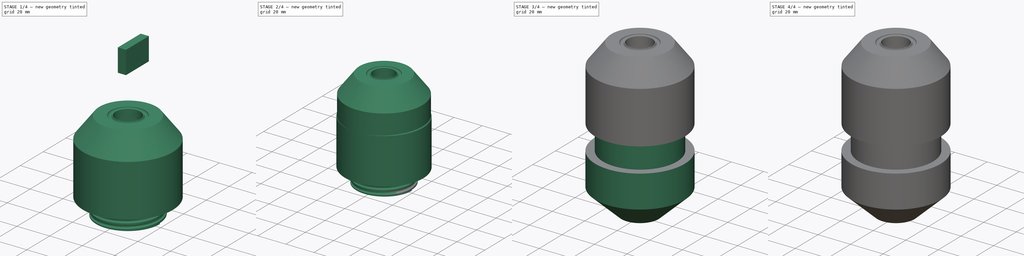
[diagram: build sequence overview — one tinted view per stage of 4, left to right]
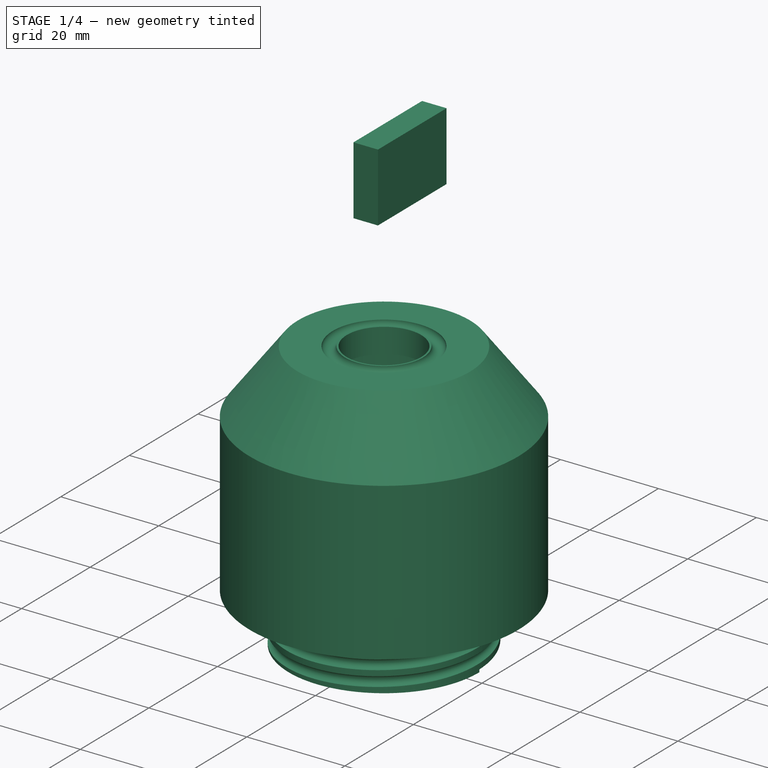
[diagram: stage 1 of 4 — iso view after this stage's code; geometry added in this stage tinted green]
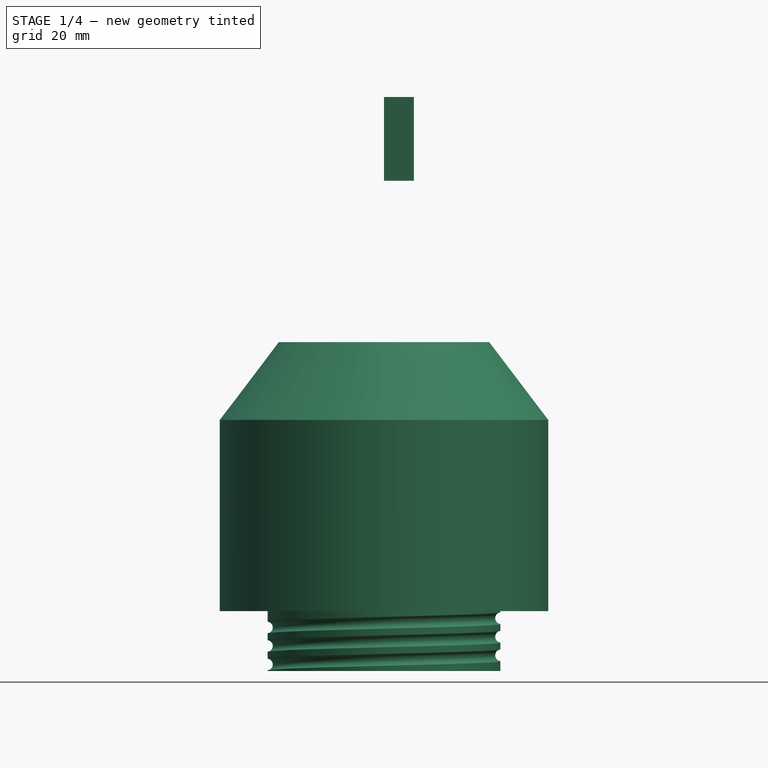
[diagram: stage 1 of 4 — front view after this stage's code; geometry added in this stage tinted green]
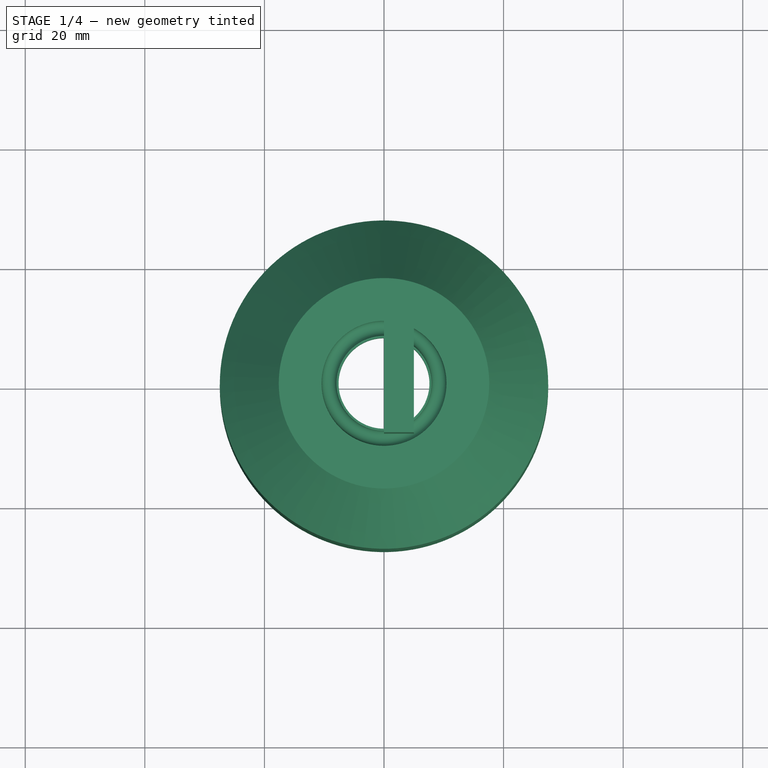
[diagram: stage 1 of 4 — top view after this stage's code; geometry added in this stage tinted green]
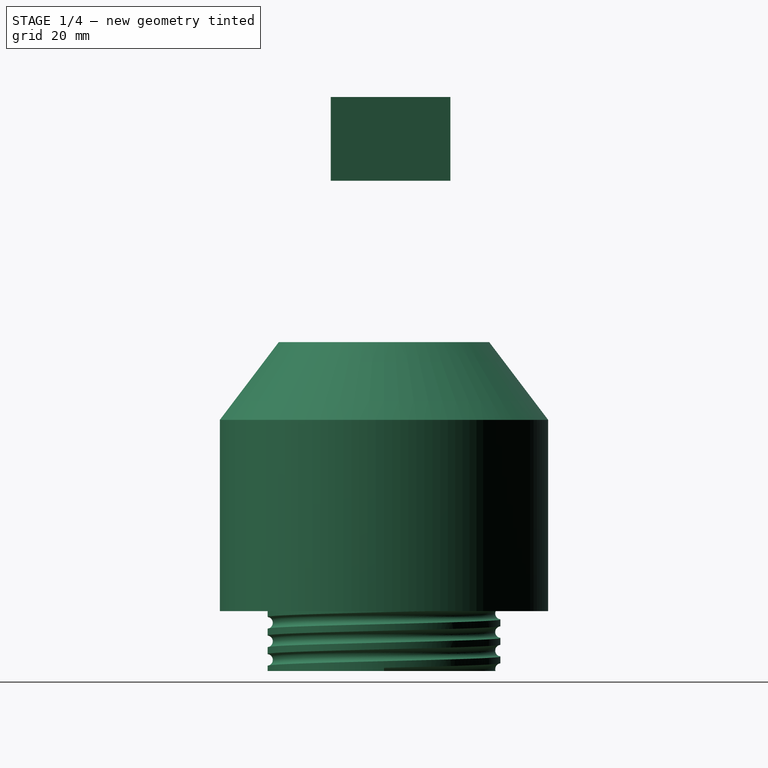
[diagram: stage 1 of 4 — right view after this stage's code; geometry added in this stage tinted green]
FCSTD DOCUMENT  (FreeCAD 0.21R33771 (Git))
Label: Geophone V16
License: All rights reserved
LicenseURL: http://en.wikipedia.org/wiki/All_rights_reserved
objects: Sketcher::SketchObject×8, PartDesign::Body×4, PartDesign::Revolution×3, PartDesign::Hole×2, PartDesign::Chamfer×2, PartDesign::SubtractiveHelix×2, Part::Cut×2, Part::FeaturePython×1, PartDesign::ShapeBinder×1, PartDesign::Pad×1
note: 36 computed .brp shape members not serialized (recipe doc carries the construction recipe); baked Part::Feature solids carry a one-line shape summary decoded from their .brp

FEATURE [Sketcher::SketchObject] Sketch001
  FullyConstrained = false
  MapMode = 5
  Placement = pos=(0,0,0) rot=(1,0,0;1.5708rad)
  Support = -> [XZ_Plane001]
  sketch-geometry (11):
    g0: LineSegment StartX=17.6 StartY=13.9999 StartZ=0 EndX=27.46 EndY=1 EndZ=0
    g1: LineSegment StartX=27.46 StartY=1 StartZ=0 EndX=27.46 EndY=-31 EndZ=0
    g2: LineSegment StartX=27.46 StartY=-31 StartZ=0 EndX=19.46 EndY=-31 EndZ=0
    g3: LineSegment StartX=19.46 StartY=-31 StartZ=0 EndX=19.46 EndY=-41 EndZ=0
    g4: LineSegment StartX=19.46 StartY=-41 StartZ=0 EndX=13.42 EndY=-41 EndZ=0
    g5: LineSegment StartX=13.42 StartY=-41 StartZ=0 EndX=13.42 EndY=9 EndZ=0
    g6: LineSegment StartX=13.42 StartY=9 StartZ=0 EndX=7.6 EndY=9 EndZ=0
    g7: LineSegment StartX=7.6 StartY=9 StartZ=0 EndX=7.6 EndY=14 EndZ=0
    g8: LineSegment StartX=7.6 StartY=14 StartZ=0 EndX=7.95 EndY=14 EndZ=0
    g9: LineSegment StartX=17.6 StartY=13.9999 StartZ=0 EndX=10.45 EndY=13.9999 EndZ=0
    g10: ArcOfCircle CenterX=9.2 CenterY=14.0004 CenterZ=0 NormalX=0 NormalY=0 NormalZ=1 AngleXU=0 Radius=1.25 StartAngle=3.14194 EndAngle=6.28279
  constraints (33):
    c: Coincident(g1,g0)
    c: Vertical(g1)
    c: Coincident(g2,g1)
    c: Horizontal(g2)
    c: Coincident(g3,g2)
    c: Vertical(g3)
    c: Coincident(g4,g3)
    c: Horizontal(g4)
    c: Coincident(g5,g4)
    c: Vertical(g5)
    c: Coincident(g6,g5)
    c: Horizontal(g6)
    c: Coincident(g7,g6)
    c: Vertical(g7)
    c: DistanceX(g-1,g6) = 7.6
    c: Distance(g0,g0) = 16.3162
    c: DistanceY(g6,g7) = 5
    c: DistanceX(g6,g5) = 5.82
    c: Distance(g6,g-1) = 9
    c: DistanceY(g4,g5) = 50
    c: DistanceY(g1,g0) = 32
    c: DistanceX(g4,g3) = 6.04
    c: DistanceX(g2,g1) = 8
    c: DistanceY(g3,g2) = 10
    c: Coincident(g8,g7)
    c: Horizontal(g8)
    c: Coincident(g9,g0)
    c: Horizontal(g9)
    c: Coincident(g10,g8)
    c: Coincident(g10,g9)
    c: DistanceX(g7,g8) = 0.35
    c: Radius(g10) = 1.25
    c: DistanceX(g9,g0) = 7.15
FEATURE [PartDesign::Revolution] Revolution001
  Angle = 360
  Axis = (0,-2e-16,1)
  Base = (0,0,0)
  Placement = pos=(0,0,0) rot=(1,0,0;1.5708rad)
  Profile = -> Sketch001
  ReferenceAxis = -> Sketch001 [V_Axis]
  Reversed = true
FEATURE [PartDesign::Body] Body  label="BASE001"
  Group = -> [Sketch,Revolution,Chamfer003]
  Origin = -> Origin
  Tip = -> Chamfer003
FEATURE [Sketcher::SketchObject] Sketch008
  FullyConstrained = false
  MapMode = 5
  Placement = pos=(0,0,0) rot=(1,0,0;1.5708rad)
  Support = -> [XZ_Plane001]
  sketch-geometry (1):
    g0: Circle CenterX=19.6 CenterY=-41.47 CenterZ=0 NormalX=0 NormalY=0 NormalZ=1 AngleXU=0 Radius=1
  constraints (2):
    c: Diameter(g0) = 2
    c: DistanceX(g0) = 19.6
FEATURE [PartDesign::SubtractiveHelix] SubtractiveHelix
  Angle = 0
  Axis = (0,-2e-16,1)
  Base = (0,0,0)
  BaseFeature = -> Revolution001
  Growth = 0
  HasBeenEdited = true
  Height = 10.33
  LeftHanded = false
  Mode = 0
  Outside = false
  Pitch = 3.1
  Placement = pos=(0,0,0) rot=(1,0,0;1.5708rad)
  Profile = -> Sketch008
  ReferenceAxis = -> Sketch008 [V_Axis]
  Turns = 3.33226
FEATURE [PartDesign::Body] Body001  label="UP"
  Group = -> [Sketch001,Revolution001,Sketch008,SubtractiveHelix,ShapeBinder,Sketch009,Hole]
  Origin = -> Origin001
  Placement = pos=(0,0,66.1) rot=(0,0,1;0rad)
  Tip = -> Hole
FEATURE [Sketcher::SketchObject] Sketch010
  FullyConstrained = false
  MapMode = 5
  Placement = pos=(0,0,0) rot=(0.57735,0.57735,0.57735;2.0944rad)
  Support = -> [YZ_Plane005]
  sketch-geometry (4):
    g0: LineSegment StartX=-8.90263 StartY=54.9851 StartZ=0 EndX=11.0974 EndY=54.9851 EndZ=0
    g1: LineSegment StartX=11.0974 StartY=54.9851 StartZ=0 EndX=11.0974 EndY=40.9851 EndZ=0
    g2: LineSegment StartX=11.0974 StartY=40.9851 StartZ=0 EndX=-8.90263 EndY=40.9851 EndZ=0
    g3: LineSegment StartX=-8.90263 StartY=40.9851 StartZ=0 EndX=-8.90263 EndY=54.9851 EndZ=0
  constraints (10):
    c: Coincident(g0,g1)
    c: Coincident(g1,g2)
    c: Coincident(g2,g3)
    c: Coincident(g3,g0)
    c: Horizontal(g0)
    c: Horizontal(g2)
    c: Vertical(g1)
    c: Vertical(g3)
    c: DistanceX(g0,g0) = 20
    c: DistanceY(g2,g0) = 14
FEATURE [PartDesign::Pad] Pad
  Direction = (1,-2e-16,3e-16)
  Length = 5
  Length2 = 10
  Placement = pos=(0,0,0) rot=(0.57735,0.57735,0.57735;2.0944rad)
  Profile = -> Sketch010
  ReferenceAxis = -> Sketch010 [N_Axis]
  Type = 0
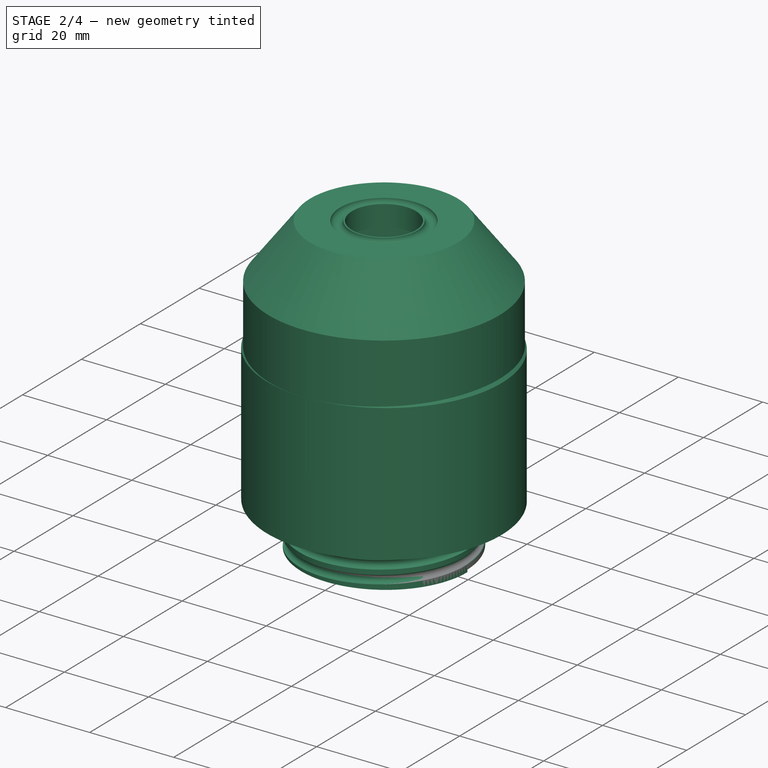
[diagram: stage 2 of 4 — iso view after this stage's code; geometry added in this stage tinted green]
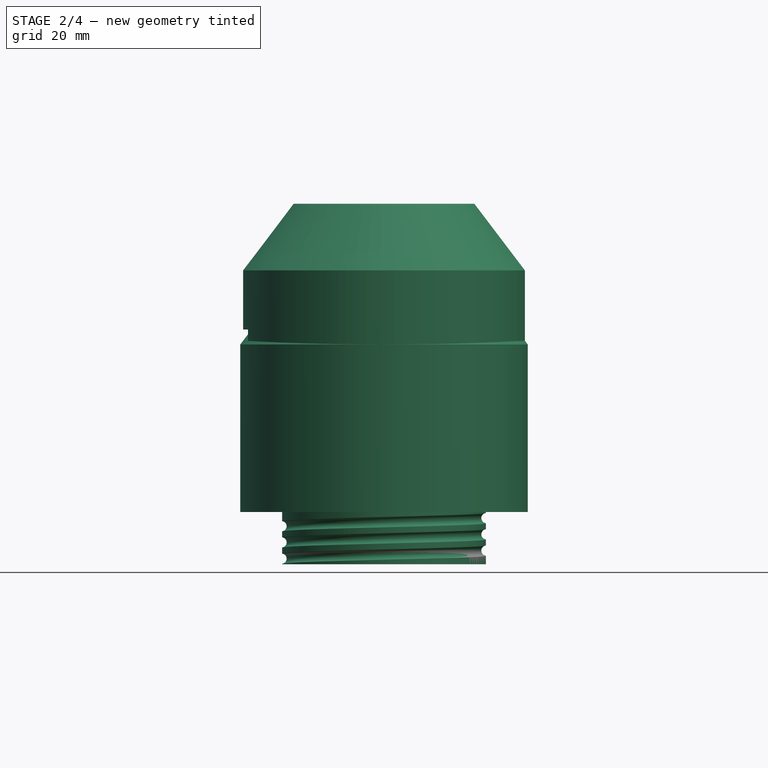
[diagram: stage 2 of 4 — front view after this stage's code; geometry added in this stage tinted green]
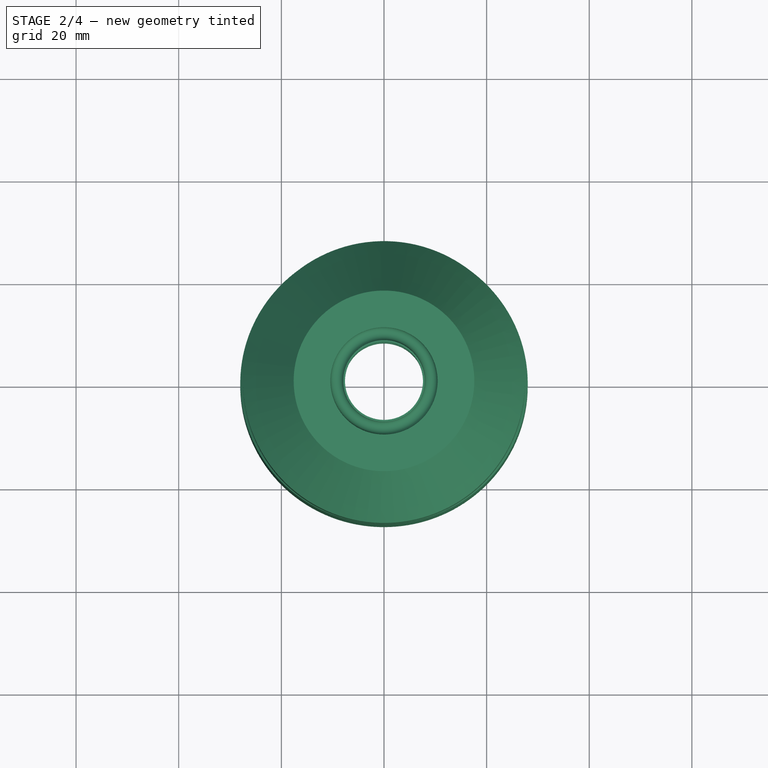
[diagram: stage 2 of 4 — top view after this stage's code; geometry added in this stage tinted green]
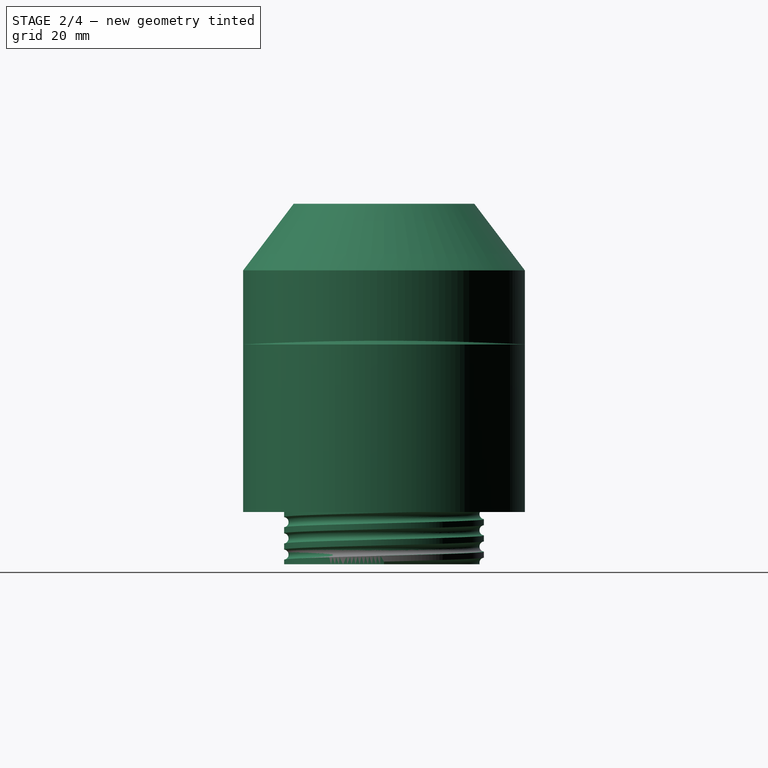
[diagram: stage 2 of 4 — right view after this stage's code; geometry added in this stage tinted green]
FEATURE [Part::FeaturePython] Clone  label="SubtractiveHelix002"  # Draft clone (typed FeaturePython)
  AttacherType = Attacher::AttachEngine3D
  Fuse = false
  Objects = -> [SubtractiveHelix]
  Placement = pos=(0,0,51.65) rot=(1,0,0;1.5708rad)
  Scale = (1.02,1.02,1)
FEATURE [PartDesign::ShapeBinder] ShapeBinder
  Placement = pos=(0,0,0) rot=(1,0,0;1.5708rad)
  Support = -> [SubtractiveHelix]
  TraceSupport = false
FEATURE [Sketcher::SketchObject] Sketch009
  ExternalGeometry = -> [ShapeBinder]
  FullyConstrained = false
  MapMode = 5
  Placement = pos=(0,0,0) rot=(0.57735,0.57735,0.57735;2.0944rad)
  Support = -> [YZ_Plane001]
  sketch-geometry (1):
    g0: Circle CenterX=0 CenterY=-17.4735 CenterZ=0 NormalX=0 NormalY=0 NormalZ=1 AngleXU=0 Radius=5.91816
  constraints (1):
    c: PointOnObject(g0,g-2)
FEATURE [PartDesign::Hole] Hole
  BaseFeature = -> SubtractiveHelix
  CustomThreadClearance = 0.3
  Depth = 30
  DepthType = 0
  Diameter = 9.2
  DrillForDepth = false
  DrillPoint = 0
  DrillPointAngle = 118
  HoleCutCountersinkAngle = 90
  HoleCutCustomValues = false
  HoleCutDepth = 0
  HoleCutDiameter = 11
  HoleCutType = 0
  ModelThread = false
  Placement = pos=(0,0,0) rot=(1,0,0;1.5708rad)
  Profile = -> Sketch009
  Tapered = false
  TaperedAngle = 90
  ThreadClass = 0
  ThreadDepth = 30
  ThreadDepthType = 0
  ThreadDirection = 0
  ThreadFit = 0
  ThreadSize = 0
  ThreadType = 0
  Threaded = false
  UseCustomThreadClearance = false
FEATURE [PartDesign::Body] Body004  label="Body"
  Group = -> [Sketch010,Pad]
  Origin = -> Origin005
  Placement = pos=(-31.5,-1.25,0.6) rot=(0,0,1;0rad)
  Tip = -> Pad
FEATURE [Part::Cut] Cut001
  Base = -> Body001
  Tool = -> Body004
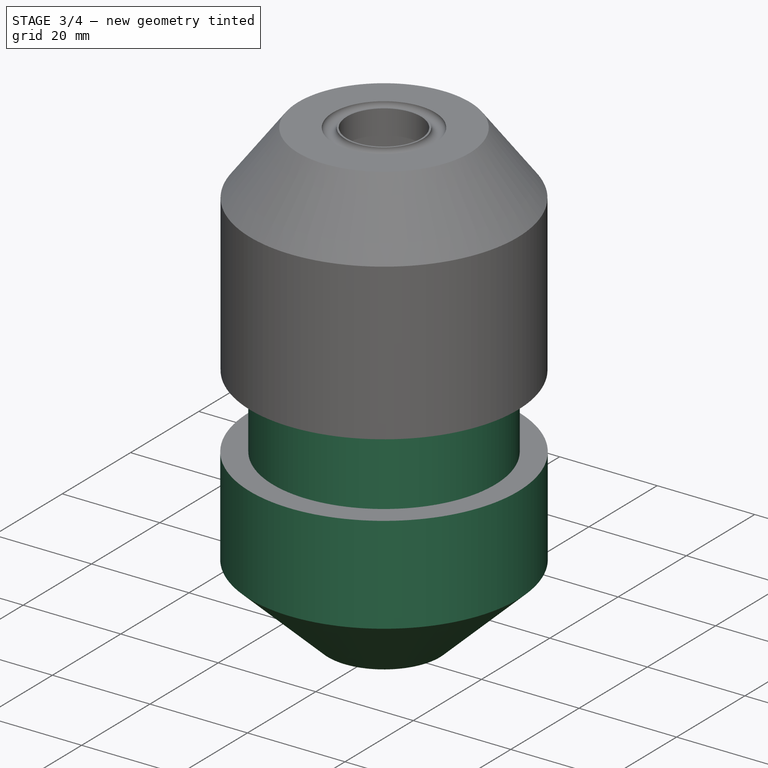
[diagram: stage 3 of 4 — iso view after this stage's code; geometry added in this stage tinted green]
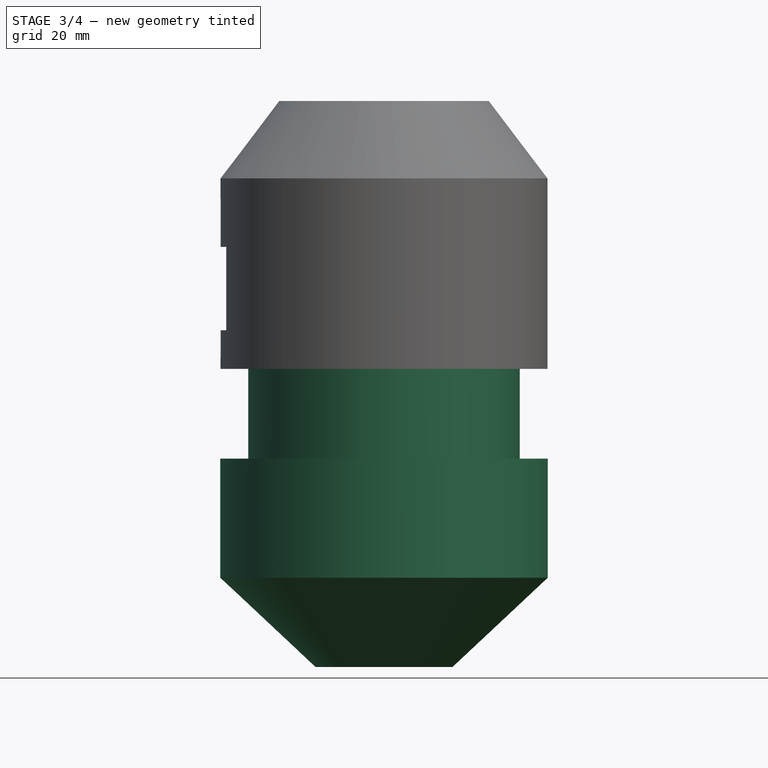
[diagram: stage 3 of 4 — front view after this stage's code; geometry added in this stage tinted green]
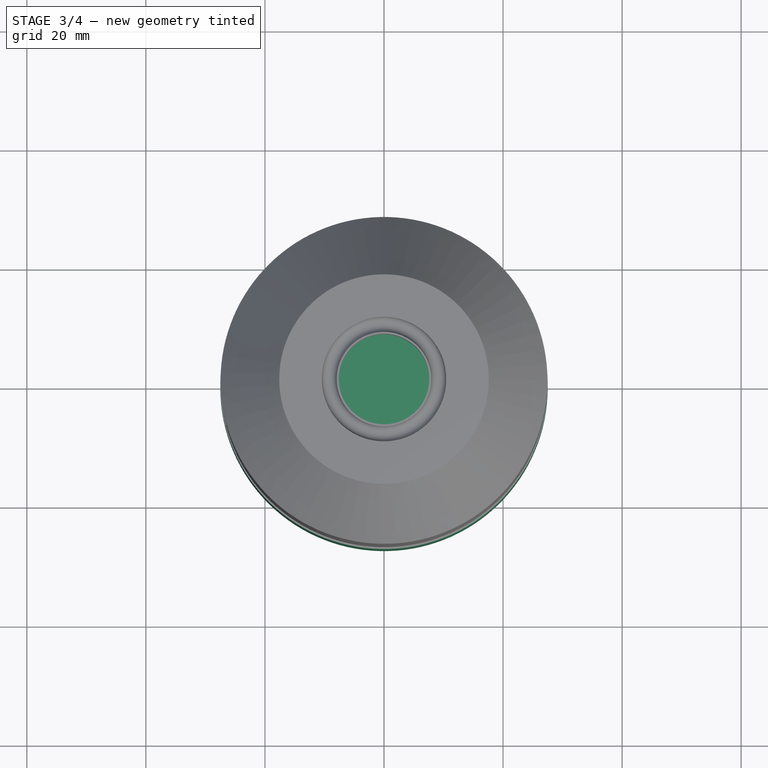
[diagram: stage 3 of 4 — top view after this stage's code; geometry added in this stage tinted green]
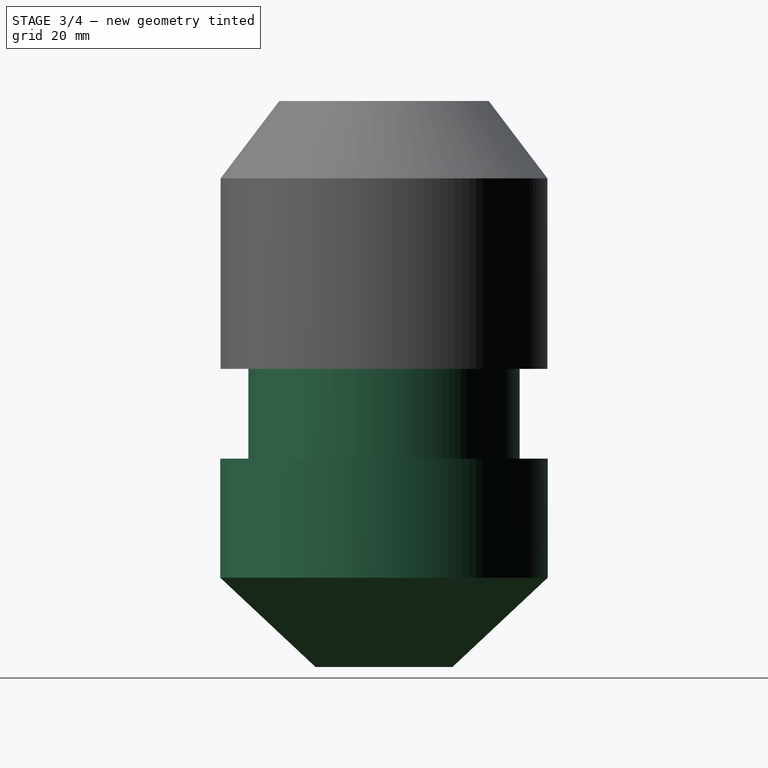
[diagram: stage 3 of 4 — right view after this stage's code; geometry added in this stage tinted green]
FEATURE [Sketcher::SketchObject] Sketch  label="BASE"
  FullyConstrained = false
  MapMode = 5
  Placement = pos=(0,0,0) rot=(1,0,0;1.5708rad)
  Support = -> [XZ_Plane]
  sketch-geometry (11):
    g0: LineSegment StartX=0 StartY=1.8e-15 StartZ=0 EndX=4.6 EndY=0 EndZ=0
    g1: LineSegment StartX=4.6 StartY=0 StartZ=0 EndX=4.6 EndY=-15 EndZ=0
    g2: LineSegment StartX=4.6 StartY=-15 StartZ=0 EndX=11.5 EndY=-15 EndZ=0
    g3: LineSegment StartX=11.5 StartY=-15 StartZ=0 EndX=27.517 EndY=0.00858504 EndZ=0
    g4: LineSegment StartX=27.517 StartY=0.00858504 StartZ=0 EndX=27.517 EndY=20.0086 EndZ=0
    g5: LineSegment StartX=27.517 StartY=20.0086 StartZ=0 EndX=18.727 EndY=20.0086 EndZ=0
    g6: LineSegment StartX=18.727 StartY=20.0086 StartZ=0 EndX=18.727 EndY=9.70859 EndZ=0
    g7: LineSegment StartX=0 StartY=9.7 StartZ=0 EndX=0 EndY=1.8e-15 EndZ=0
    g8: LineSegment StartX=0 StartY=9.7 StartZ=0 EndX=14.73 EndY=9.7 EndZ=0
    g9: LineSegment StartX=18.727 StartY=9.70859 StartZ=0 EndX=18.327 EndY=9.70859 EndZ=0
    g10: ArcOfCircle CenterX=16.5283 CenterY=9.77741 CenterZ=0 NormalX=0 NormalY=0 NormalZ=1 AngleXU=0 Radius=1.8 StartAngle=3.18461 EndAngle=6.24494
  constraints (32):
    c: Coincident(g0,g-1)
    c: PointOnObject(g0,g-1)
    c: Coincident(g1,g0)
    c: Vertical(g1)
    c: Coincident(g2,g1)
    c: Horizontal(g2)
    c: Coincident(g3,g2)
    c: Coincident(g4,g3)
    c: Vertical(g4)
    c: Coincident(g5,g4)
    c: Horizontal(g5)
    c: Coincident(g6,g5)
    c: Vertical(g6)
    c: Coincident(g7,g0)
    c: Vertical(g7)
    c: Distance(g3,g2) = 21.95
    c: DistanceY(g4,g4) = 20
    c: DistanceY(g0,g7) = 9.7
    c: DistanceX(g0,g0) = 4.6
    c: DistanceX(g1,g2) = 6.9
    c: DistanceY(g1,g0) = 15
    c: DistanceX(g5,g4) = 8.79
    c: DistanceY(g6,g5) = 10.3
    c: Coincident(g9,g6)
    c: Horizontal(g9)
    c: Coincident(g10,g8)
    c: Coincident(g10,g9)
    c: Radius(g10) = 1.8
    c: DistanceX(g9,g6) = 0.4
    c: DistanceX(g7,g8) = 14.73
    c: Coincident(g8,g7)
    c: DistanceY(g-1,g8) = 9.7
FEATURE [PartDesign::Revolution] Revolution  label="REV BASE"
  Angle = 360
  Axis = (0,-2e-16,1)
  Base = (0,0,0)
  Placement = pos=(0,0,0) rot=(1,0,0;1.5708rad)
  Profile = -> Sketch
  ReferenceAxis = -> Sketch [V_Axis]
  Reversed = true
FEATURE [Sketcher::SketchObject] Sketch005  label="BASE003"
  FullyConstrained = true
  MapMode = 5
  Placement = pos=(0,0,0) rot=(1,0,0;1.5708rad)
  Support = -> [XZ_Plane004]
  sketch-geometry (11):
    g0: LineSegment StartX=0 StartY=0 StartZ=0 EndX=4.6 EndY=0 EndZ=0
    g1: LineSegment StartX=4.6 StartY=0 StartZ=0 EndX=4.6 EndY=-15 EndZ=0
    g2: LineSegment StartX=4.6 StartY=-15 StartZ=0 EndX=11.5 EndY=-15 EndZ=0
    g3: LineSegment StartX=11.5 StartY=-15 StartZ=0 EndX=22.8 EndY=2.8e-15 EndZ=0
    g4: LineSegment StartX=22.8 StartY=2.8e-15 StartZ=0 EndX=22.8 EndY=42 EndZ=0
    g5: LineSegment StartX=22.8 StartY=42 StartZ=0 EndX=17.8 EndY=42 EndZ=0
    g6: LineSegment StartX=17.8 StartY=42 StartZ=0 EndX=17.8 EndY=52 EndZ=0
    g7: LineSegment StartX=17.8 StartY=52 StartZ=0 EndX=12.8 EndY=52 EndZ=0
    g8: LineSegment StartX=12.8 StartY=52 StartZ=0 EndX=12.8 EndY=10 EndZ=0
    g9: LineSegment StartX=12.8 StartY=10 StartZ=0 EndX=0 EndY=10 EndZ=0
    g10: LineSegment StartX=0 StartY=10 StartZ=0 EndX=0 EndY=0 EndZ=0
  constraints (32):
    c: Coincident(g0,g-1)
    c: PointOnObject(g0,g-1)
    c: Coincident(g1,g0)
    c: Vertical(g1)
    c: Coincident(g2,g1)
    c: Horizontal(g2)
    c: Coincident(g3,g2)
    c: Coincident(g4,g3)
    c: Vertical(g4)
    c: Coincident(g5,g4)
    c: Horizontal(g5)
    c: Coincident(g6,g5)
    c: Vertical(g6)
    c: Coincident(g7,g6)
    c: Horizontal(g7)
    c: Coincident(g8,g7)
    c: Vertical(g8)
    c: Coincident(g9,g8)
    c: Horizontal(g9)
    c: Coincident(g10,g9)
    c: Coincident(g10,g0)
    c: Vertical(g10)
    c: DistanceX(g0,g0) = 4.6
    c: DistanceY(g0,g9) = 10
    c: DistanceY(g1,g0) = 15
    c: DistanceY(g8,g7) = 42
    c: DistanceY(g5,g6) = 10
    c: DistanceX(g7,g6) = 5
    c: DistanceX(g5,g4) = 5
    c: DistanceY(g3,g4) = 42
    c: DistanceX(g9,g8) = 12.8
    c: DistanceX(g1,g2) = 6.9
FEATURE [PartDesign::Revolution] Revolution002  label="REV BASE001"
  Angle = 360
  Axis = (0,2e-16,1)
  Base = (0,0,0)
  Placement = pos=(0,0,0) rot=(1,0,0;1.5708rad)
  Profile = -> Sketch005
  ReferenceAxis = -> Sketch005 [V_Axis]
  Reversed = true
FEATURE [PartDesign::Body] Body003  label="BASE002"
  Group = -> [Sketch005,Revolution002,Sketch006,Hole001,Chamfer002,Sketch007,SubtractiveHelix001]
  Origin = -> Origin004
  Tip = -> SubtractiveHelix001
FEATURE [PartDesign::Chamfer] Chamfer003
  Angle = 45
  Base = -> Revolution
  BaseFeature = -> Revolution
  ChamferType = 0
  FlipDirection = false
  Placement = pos=(0,0,0) rot=(1,0,0;1.5708rad)
  Size = 1
  Size2 = 1
  SupportTransform = false
  UseAllEdges = false
FEATURE [Part::Cut] Cut
  Base = -> Body
  Tool = -> Clone
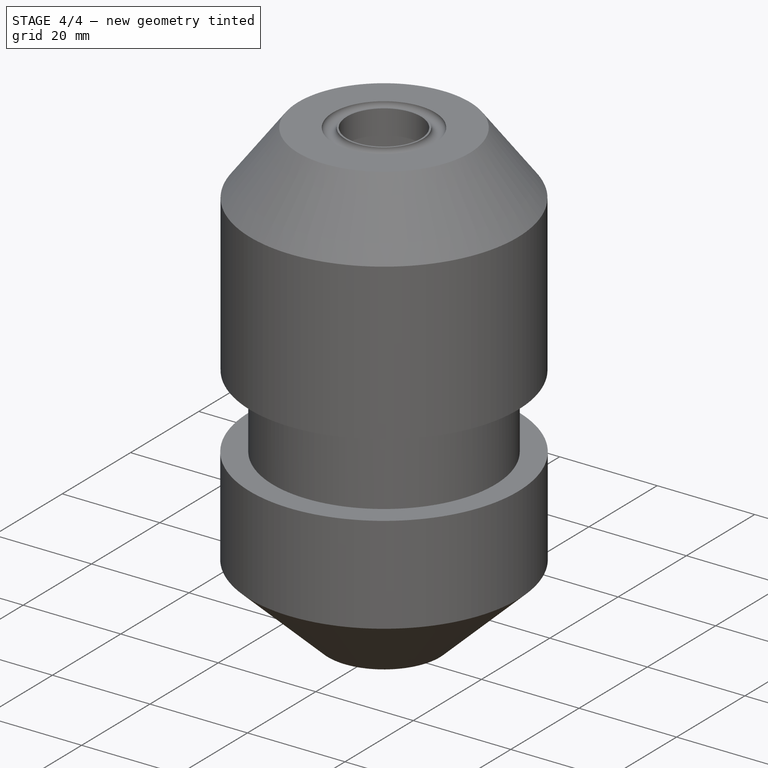
[diagram: stage 4 of 4 — iso view after this stage's code; geometry added in this stage tinted green]
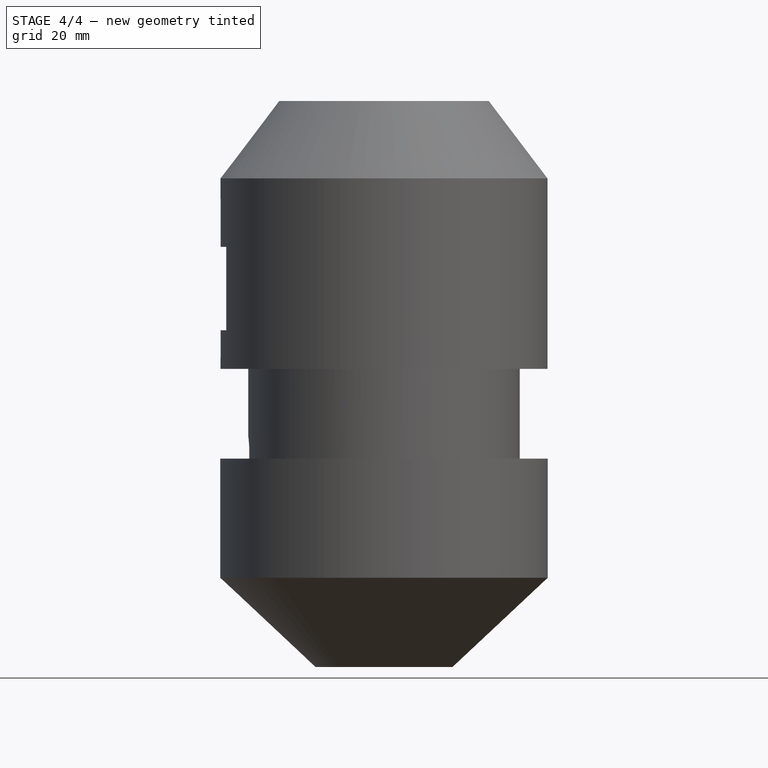
[diagram: stage 4 of 4 — front view after this stage's code; geometry added in this stage tinted green]
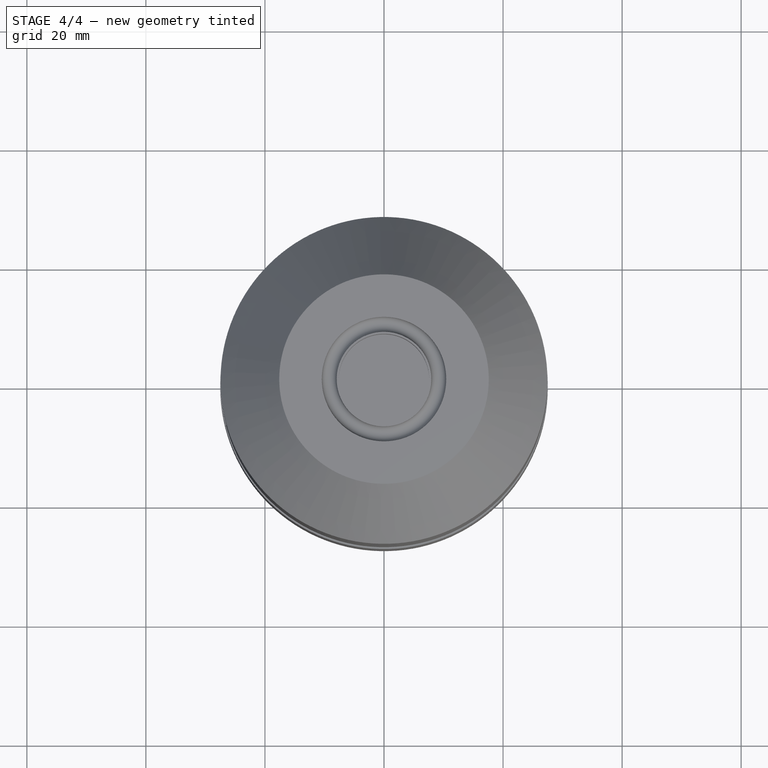
[diagram: stage 4 of 4 — top view after this stage's code; geometry added in this stage tinted green]
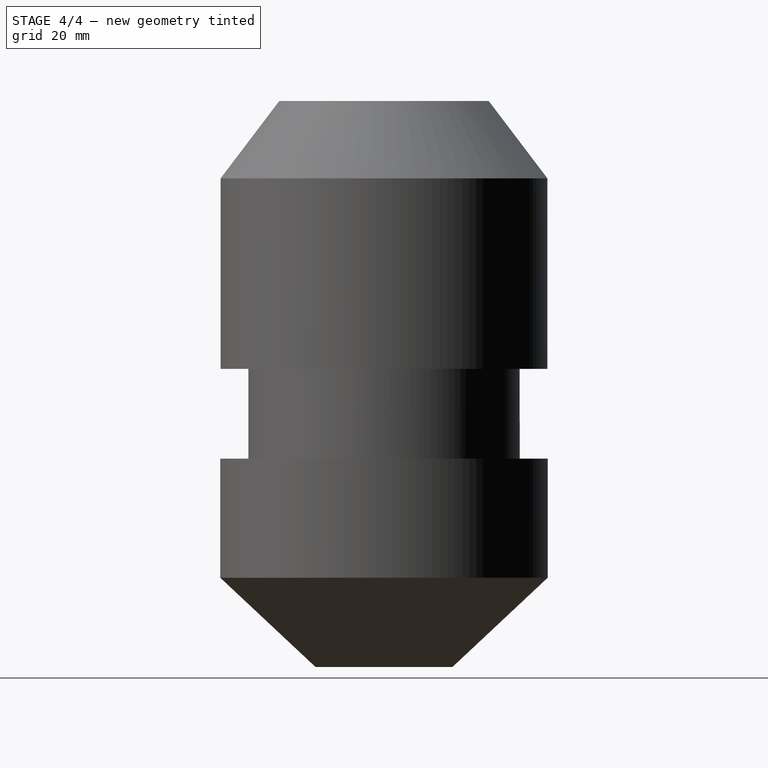
[diagram: stage 4 of 4 — right view after this stage's code; geometry added in this stage tinted green]
FEATURE [Sketcher::SketchObject] Sketch006
  FullyConstrained = false
  MapMode = 5
  Placement = pos=(0,0,0) rot=(0.57735,0.57735,0.57735;2.0944rad)
  Support = -> [YZ_Plane004]
  sketch-geometry (1):
    g0: Circle CenterX=0 CenterY=21 CenterZ=0 NormalX=0 NormalY=0 NormalZ=1 AngleXU=0 Radius=4.42293
  constraints (2):
    c: PointOnObject(g0,g-2)
    c: DistanceY(g-1,g0) = 21
FEATURE [PartDesign::Hole] Hole001
  BaseFeature = -> Revolution002
  CustomThreadClearance = 0.6
  Depth = 30
  DepthType = 0
  Diameter = 5.6
  DrillForDepth = false
  DrillPoint = 1
  DrillPointAngle = 118
  HoleCutCountersinkAngle = 90
  HoleCutCustomValues = false
  HoleCutDepth = 0
  HoleCutDiameter = 6.1
  HoleCutType = 0
  ModelThread = true
  Placement = pos=(0,0,0) rot=(1,0,0;1.5708rad)
  Profile = -> Sketch006
  Tapered = false
  TaperedAngle = 90
  ThreadClass = 0
  ThreadDepth = 24.9
  ThreadDepthType = 2
  ThreadDirection = 0
  ThreadFit = 0
  ThreadSize = 14
  ThreadType = 1
  Threaded = true
  UseCustomThreadClearance = true
FEATURE [PartDesign::Chamfer] Chamfer002
  Angle = 45
  Base = -> Hole001 [Edge5,Edge4]
  BaseFeature = -> Hole001
  ChamferType = 0
  FlipDirection = false
  Placement = pos=(0,0,0) rot=(1,0,0;1.5708rad)
  Size = 0.5
  Size2 = 1
  SupportTransform = false
  UseAllEdges = false
FEATURE [Sketcher::SketchObject] Sketch007
  FullyConstrained = true
  MapMode = 5
  Placement = pos=(0,0,0) rot=(1,0,0;1.5708rad)
  Support = -> [XZ_Plane004]
  sketch-geometry (1):
    g0: Circle CenterX=-17.85 CenterY=53.14 CenterZ=0 NormalX=0 NormalY=0 NormalZ=1 AngleXU=0 Radius=1
  constraints (3):
    c: Diameter(g0) = 2
    c: Distance(g0,g-2) = 17.85
    c: Distance(g0,g-1) = 53.14
FEATURE [PartDesign::SubtractiveHelix] SubtractiveHelix001
  Angle = 0
  Axis = (0,-2e-16,1)
  Base = (0,0,0)
  BaseFeature = -> Chamfer002
  Growth = 0
  HasBeenEdited = true
  Height = 12
  LeftHanded = false
  Mode = 0
  Outside = false
  Pitch = 3
  Placement = pos=(0,0,0) rot=(1,0,0;1.5708rad)
  Profile = -> Sketch007
  ReferenceAxis = -> Sketch007 [V_Axis]
  Reversed = true
  Turns = 4
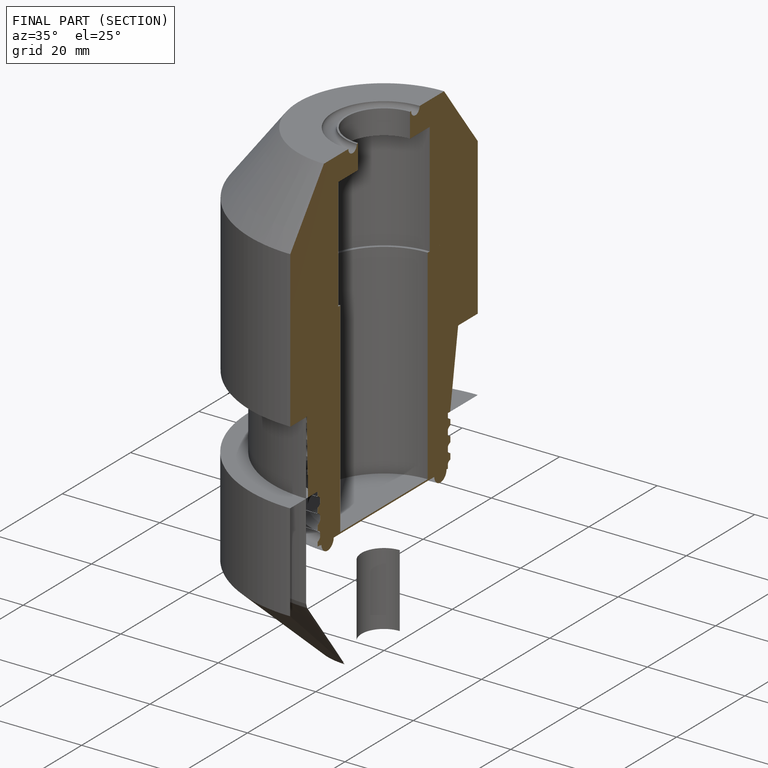
[diagram: finished part — half-section view (interior)]
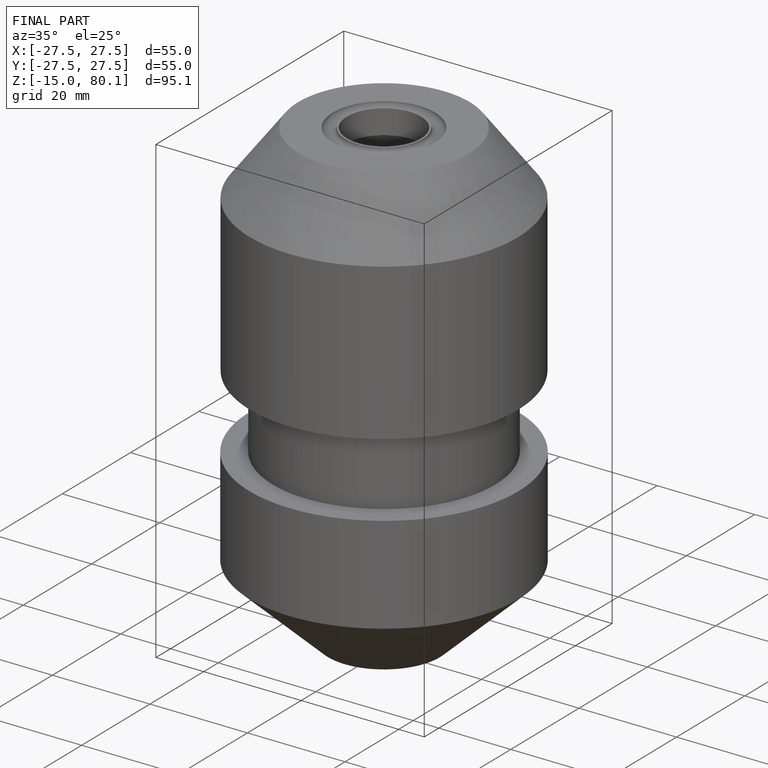
[diagram: finished part — iso view with bounding-box wireframe]
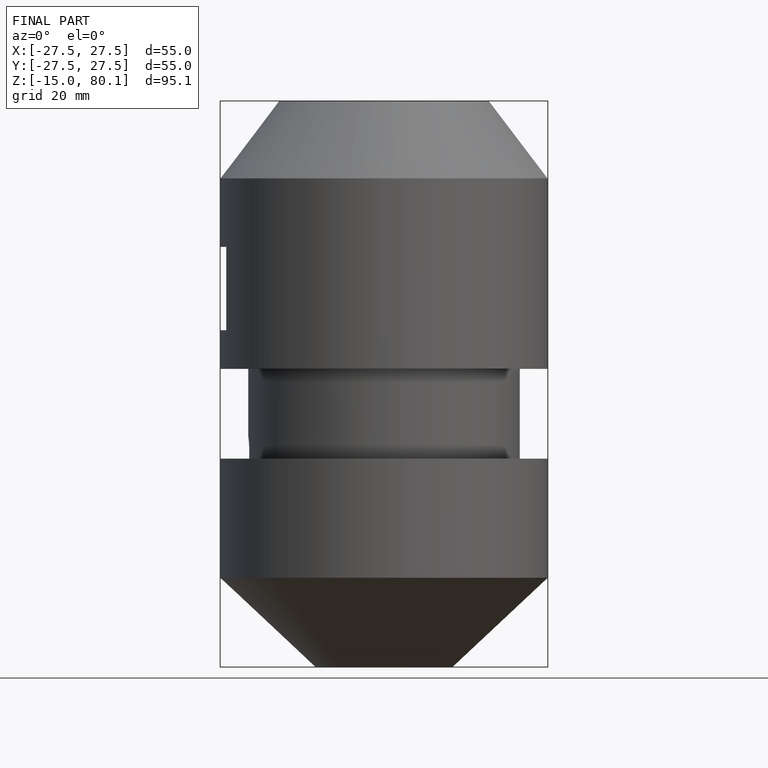
[diagram: finished part — front view with bounding-box wireframe]
